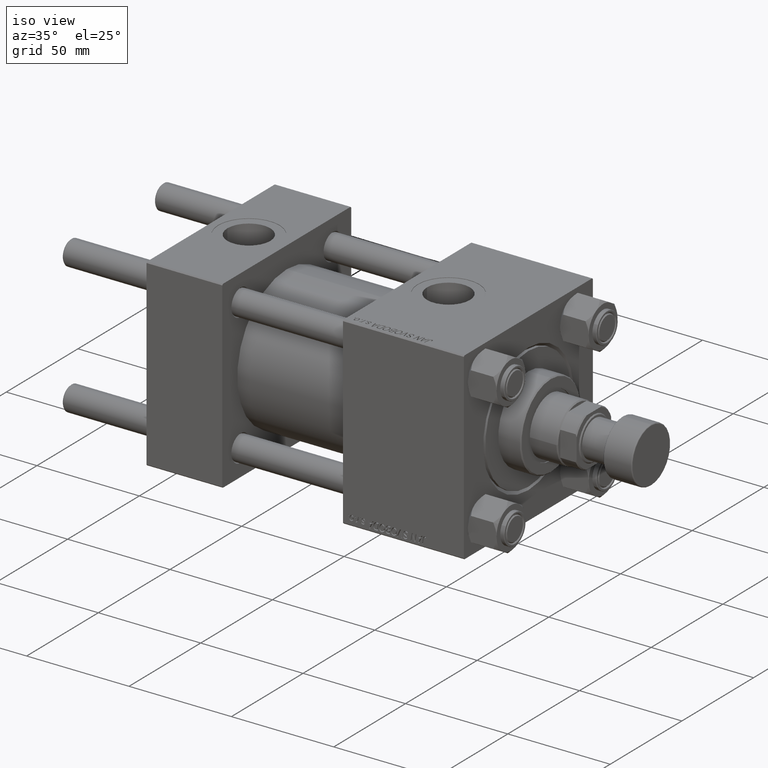
[diagram: clean part render]
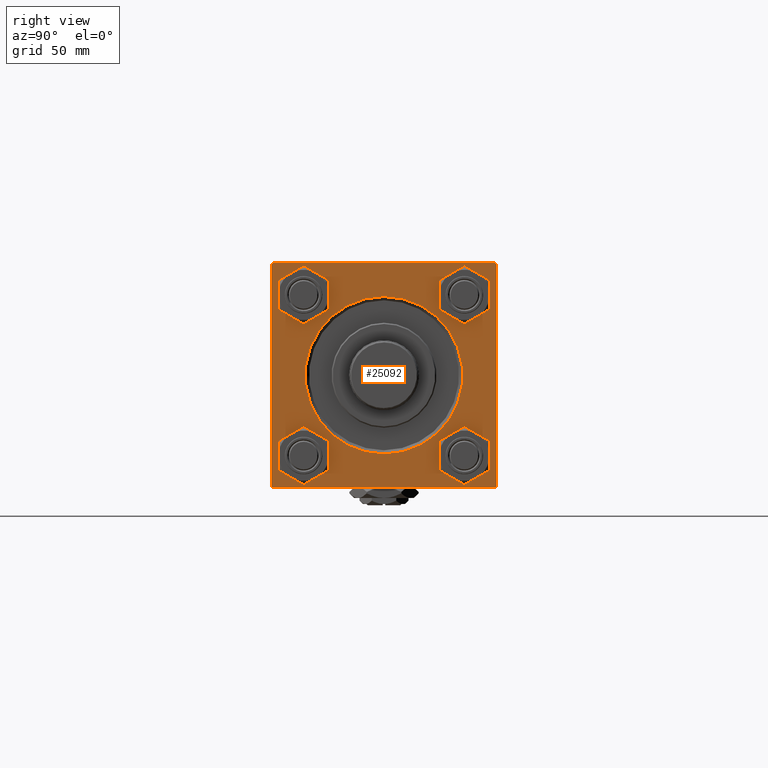
[diagram: tour spotlight — one face highlighted and labeled with its STEP entity id]
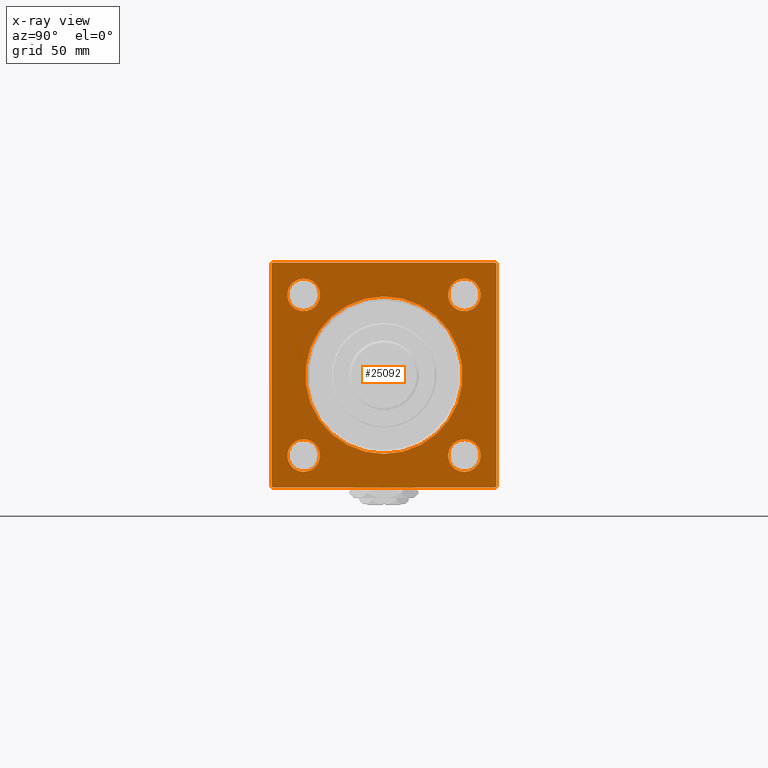
[diagram: x-ray of the same camera — body ghosted, this tour face saturated]
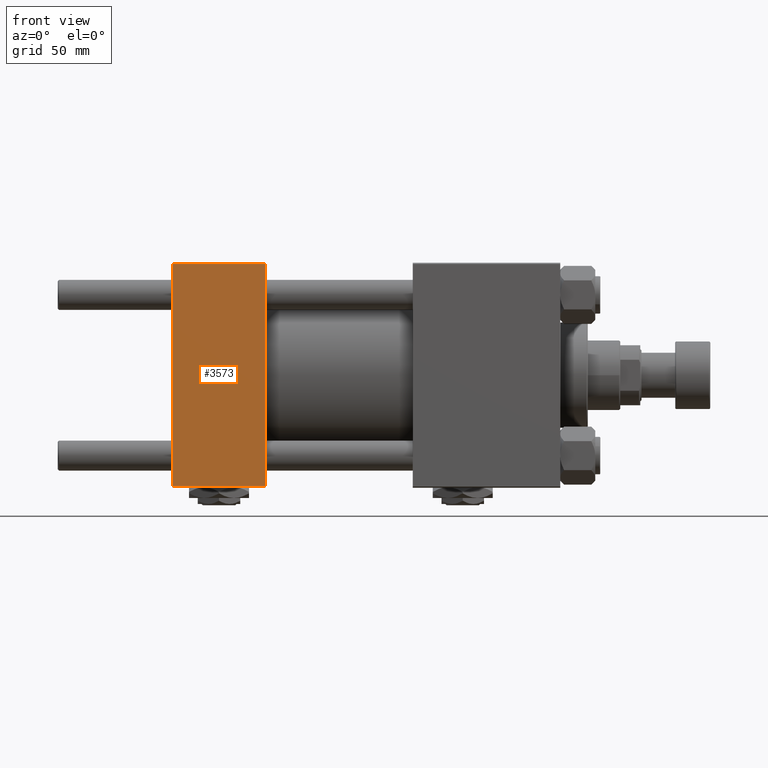
[diagram: tour spotlight — one face highlighted and labeled with its STEP entity id]
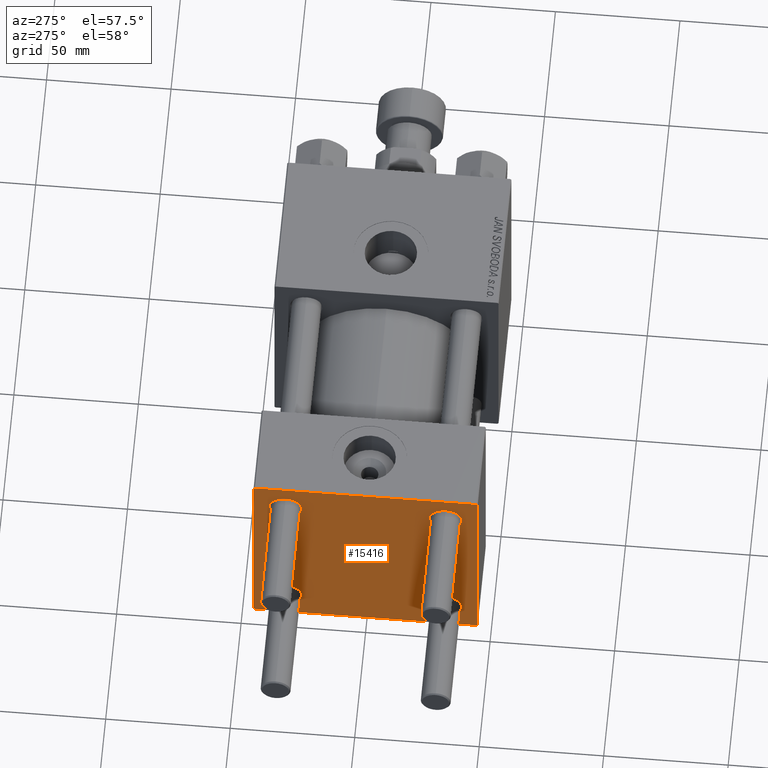
[diagram: tour spotlight — one face highlighted and labeled with its STEP entity id]
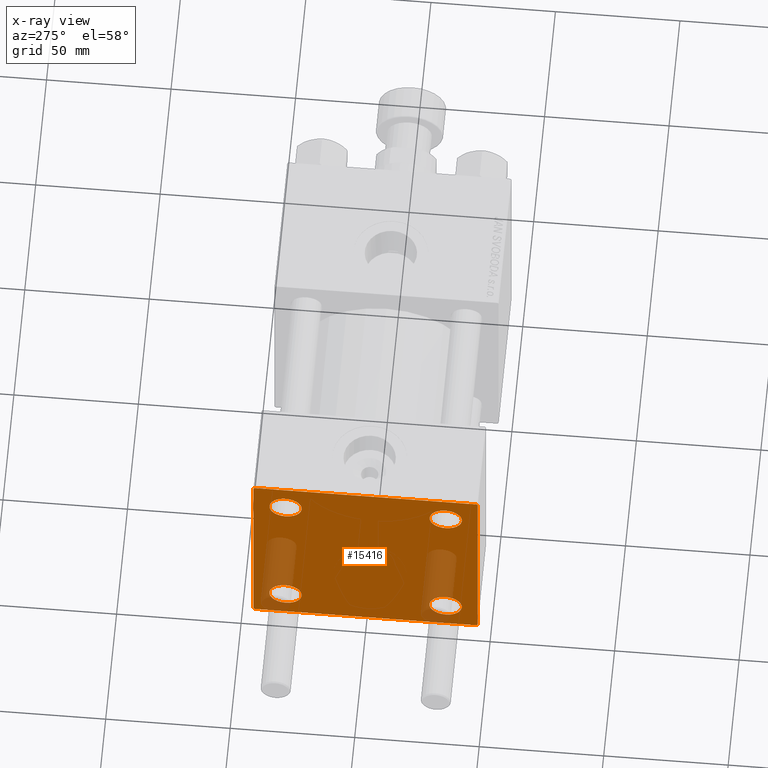
[diagram: x-ray of the same camera — body ghosted, this tour face saturated]
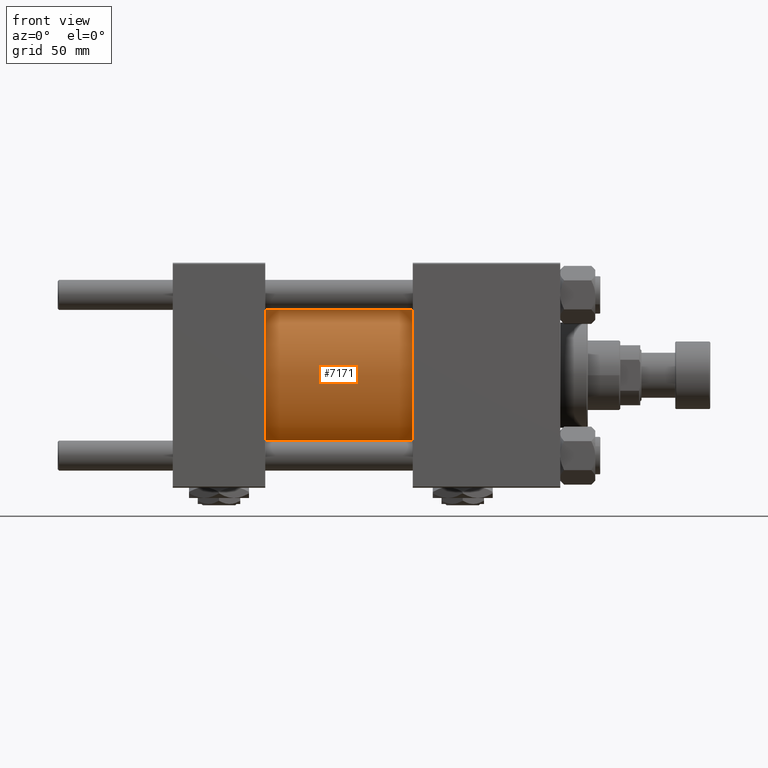
[diagram: tour spotlight — one face highlighted and labeled with its STEP entity id]
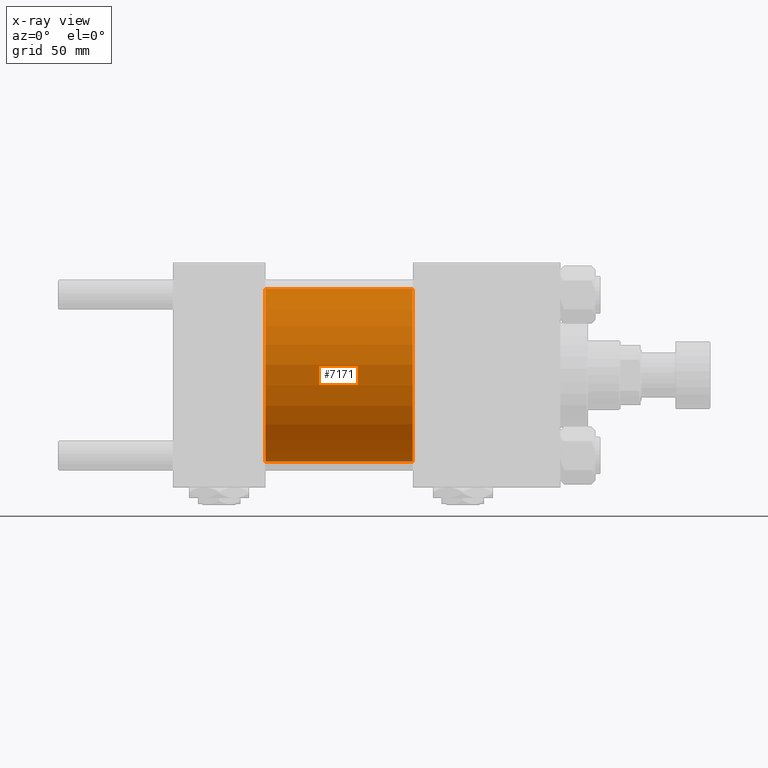
[diagram: x-ray of the same camera — body ghosted, this tour face saturated]
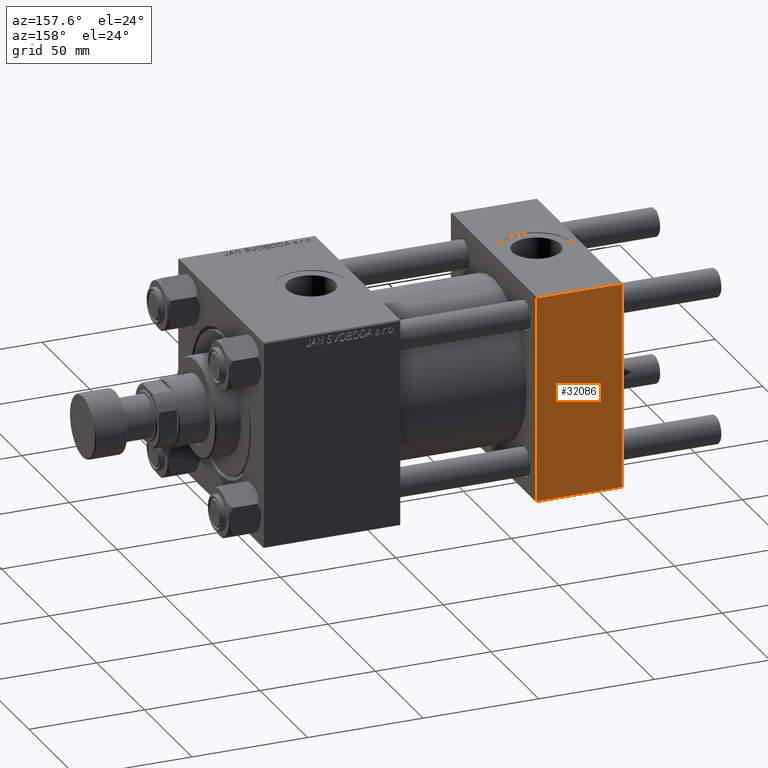
[diagram: tour spotlight — one face highlighted and labeled with its STEP entity id]
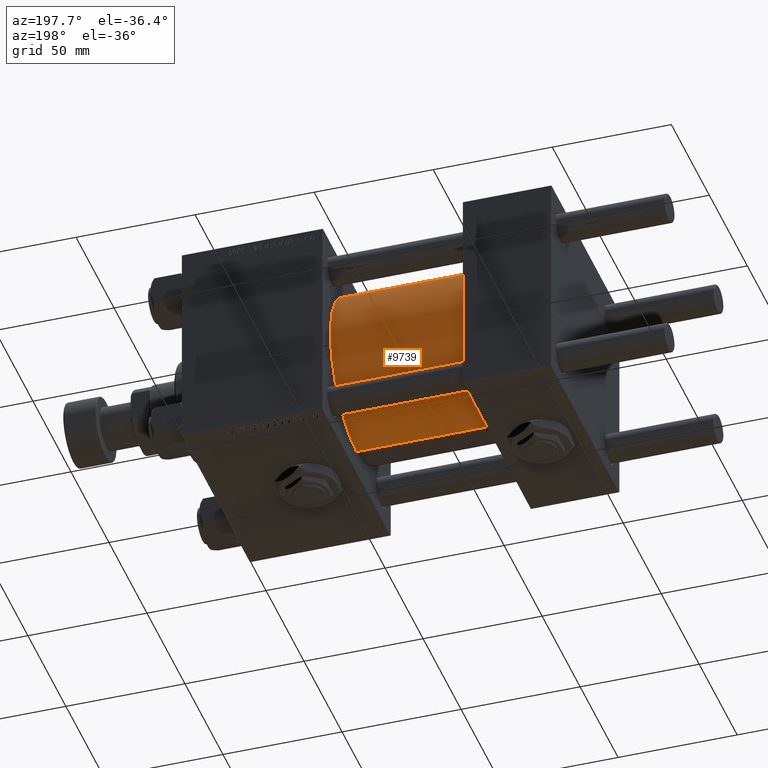
[diagram: tour spotlight — one face highlighted and labeled with its STEP entity id]
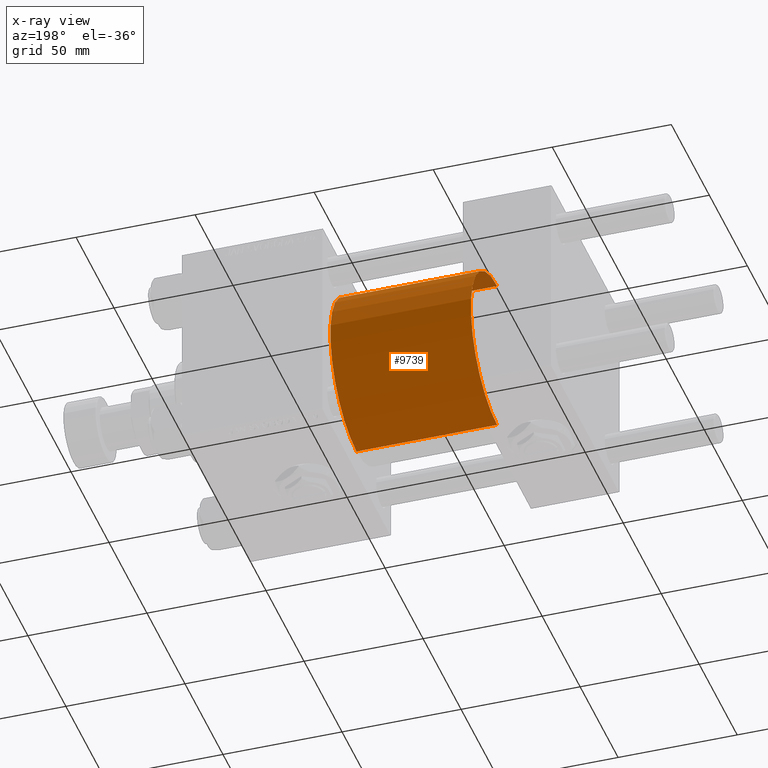
[diagram: x-ray of the same camera — body ghosted, this tour face saturated]
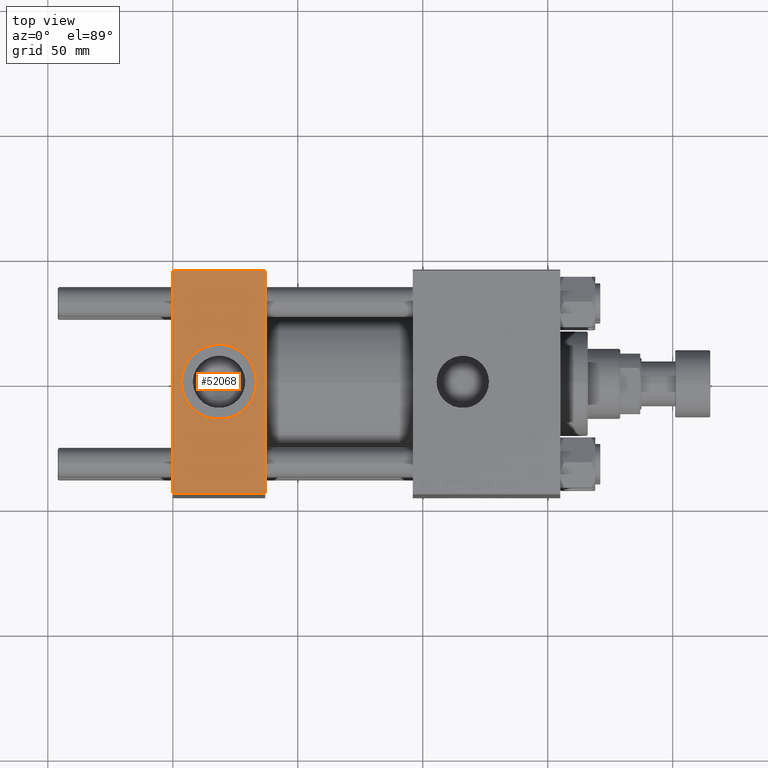
[diagram: tour spotlight — one face highlighted and labeled with its STEP entity id]
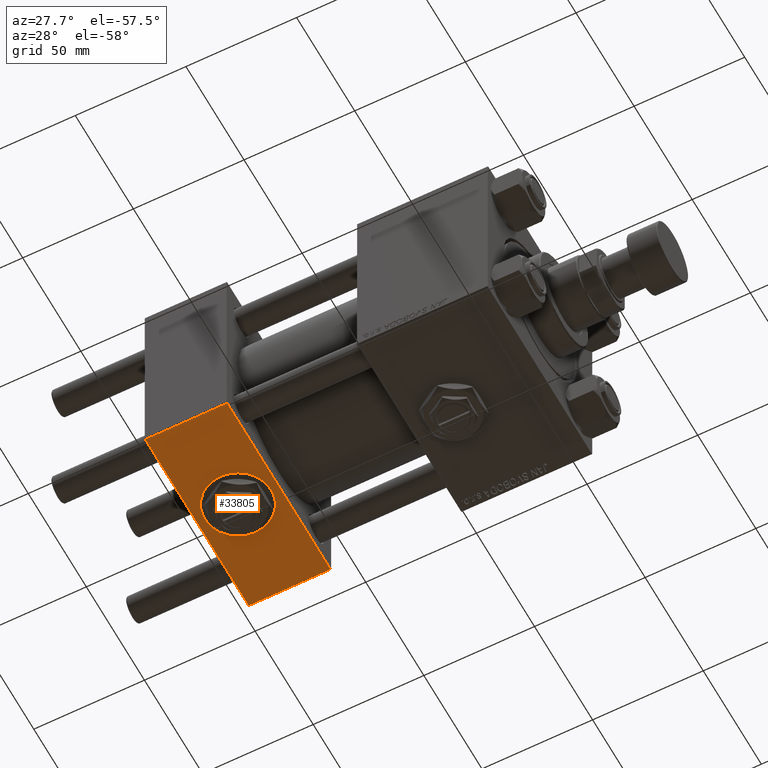
[diagram: tour spotlight — one face highlighted and labeled with its STEP entity id]
A machine part: a face-by-face anatomy tour. The part has 1247 B-rep faces; the first image is the clean iso view, then the 8 largest visible faces are spotlighted one at a time (largest first), each with its STEP entity span.

Face 1 — right view, entity #25092. An x-ray twin of the same camera follows (body ghosted, this face saturated) — the face is partly hidden behind the body. In plain terms, the highlighted planar face has unit normal (-1, 0, 0).
Definition (entity closure, byte-faithful):
#555 = FACE_BOUND ( 'NONE', #39057, .T. ) ;
#599 = EDGE_CURVE ( 'NONE', #22335, #49947, #43040, .T. ) ;
#639 = DIRECTION ( 'NONE',  ( -1.000000000000000000, -0.000000000000000000, -0.000000000000000000 ) ) ;
#741 = LINE ( 'NONE', #8438, #45087 ) ;
#987 = DIRECTION ( 'NONE',  ( -0.000000000000000000, -0.7071067811865474617, -0.7071067811865474617 ) ) ;
#1257 = AXIS2_PLACEMENT_3D ( 'NONE', #11202, #38971, #42944 ) ;
#1355 = CARTESIAN_POINT ( 'NONE',  ( 155.0000000000000000, 44.50000000000001421, -45.00000000000000000 ) ) ;
#1512 = CIRCLE ( 'NONE', #5750, 6.500000000000061284 ) ;
#1948 = EDGE_LOOP ( 'NONE', ( #47134, #51053 ) ) ;
#1974 = EDGE_CURVE ( 'NONE', #49947, #22335, #14407, .T. ) ;
#2020 = VECTOR ( 'NONE', #24056, 1000.000000000000000 ) ;
#2168 = EDGE_CURVE ( 'NONE', #42841, #19355, #44317, .T. ) ;
#2640 = VERTEX_POINT ( 'NONE', #14092 ) ;
#3976 = AXIS2_PLACEMENT_3D ( 'NONE', #19406, #15710, #6735 ) ;
#4446 = ORIENTED_EDGE ( 'NONE', *, *, #9075, .T. ) ;
#4631 = CARTESIAN_POINT ( 'NONE',  ( 155.0000000000000000, -44.49999999999992895, -45.00000000000000000 ) ) ;
#5129 = LINE ( 'NONE', #29217, #20821 ) ;
#5150 = ORIENTED_EDGE ( 'NONE', *, *, #49520, .T. ) ;
#5434 = VERTEX_POINT ( 'NONE', #16935 ) ;
#5750 = AXIS2_PLACEMENT_3D ( 'NONE', #35007, #22573, #30539 ) ;
#6133 = CARTESIAN_POINT ( 'NONE',  ( 155.0000000000000000, 32.14999999999999147, -32.15000000000000568 ) ) ;
#6617 = ORIENTED_EDGE ( 'NONE', *, *, #48189, .F. ) ;
#6735 = DIRECTION ( 'NONE',  ( 0.000000000000000000, 0.000000000000000000, 1.000000000000000000 ) ) ;
#7760 = VERTEX_POINT ( 'NONE', #13074 ) ;
#8438 = CARTESIAN_POINT ( 'NONE',  ( 155.0000000000000000, -45.00000000000000000, 44.49999999999995737 ) ) ;
#8459 = LINE ( 'NONE', #47851, #51135 ) ;
#8516 = CARTESIAN_POINT ( 'NONE',  ( 155.0000000000000000, 0.000000000000000000, 0.000000000000000000 ) ) ;
#9075 = EDGE_CURVE ( 'NONE', #36148, #49716, #40950, .T. ) ;
#11202 = CARTESIAN_POINT ( 'NONE',  ( 155.0000000000000000, 32.14999999999999147, -32.15000000000000568 ) ) ;
#11235 = EDGE_CURVE ( 'NONE', #51222, #29384, #741, .T. ) ;
#11660 = DIRECTION ( 'NONE',  ( -1.000000000000000000, -0.000000000000000000, -0.000000000000000000 ) ) ;
#11661 = LINE ( 'NONE', #28336, #41994 ) ;
#11685 = PLANE ( 'NONE',  #30322 ) ;
#11888 = DIRECTION ( 'NONE',  ( 0.000000000000000000, -0.7071067811865474617, 0.7071067811865474617 ) ) ;
#11969 = CARTESIAN_POINT ( 'NONE',  ( 155.0000000000000000, 0.000000000000000000, -31.50000000000000000 ) ) ;
#12864 = ORIENTED_EDGE ( 'NONE', *, *, #20616, .T. ) ;
#13074 = CARTESIAN_POINT ( 'NONE',  ( 155.0000000000000000, 32.14999999999999147, -38.65000000000006963 ) ) ;
#13551 = DIRECTION ( 'NONE',  ( -1.000000000000000000, -0.000000000000000000, -0.000000000000000000 ) ) ;
#13559 = DIRECTION ( 'NONE',  ( 0.000000000000000000, 0.000000000000000000, 1.000000000000000000 ) ) ;
#14092 = CARTESIAN_POINT ( 'NONE',  ( 155.0000000000000000, 45.00000000000001421, -44.49999999999997158 ) ) ;
#14117 = EDGE_CURVE ( 'NONE', #14429, #42754, #8459, .T. ) ;
#14118 = CIRCLE ( 'NONE', #29291, 31.50000000000000000 ) ;
#14407 = CIRCLE ( 'NONE', #16922, 6.500000000000061284 ) ;
#14429 = VERTEX_POINT ( 'NONE', #43180 ) ;
#14455 = DIRECTION ( 'NONE',  ( -1.000000000000000000, -0.000000000000000000, -0.000000000000000000 ) ) ;
#14732 = CARTESIAN_POINT ( 'NONE',  ( 155.0000000000000000, -45.00000000000000000, 44.49999999999995737 ) ) ;
#14865 = CIRCLE ( 'NONE', #46942, 6.500000000000061284 ) ;
#15041 = CARTESIAN_POINT ( 'NONE',  ( 155.0000000000000000, -44.49999999999994316, 44.99999999999998579 ) ) ;
#15120 = DIRECTION ( 'NONE',  ( 0.000000000000000000, 0.000000000000000000, 1.000000000000000000 ) ) ;
#15361 = EDGE_CURVE ( 'NONE', #29912, #43986, #14865, .T. ) ;
#15710 = DIRECTION ( 'NONE',  ( -1.000000000000000000, -0.000000000000000000, -0.000000000000000000 ) ) ;
#15926 = VECTOR ( 'NONE', #24484, 1000.000000000000000 ) ;
#16063 = VECTOR ( 'NONE', #22985, 1000.000000000000000 ) ;
#16296 = ORIENTED_EDGE ( 'NONE', *, *, #14117, .T. ) ;
#16461 = CIRCLE ( 'NONE', #36726, 6.500000000000061284 ) ;
#16922 = AXIS2_PLACEMENT_3D ( 'NONE', #40487, #11660, #15120 ) ;
#16935 = CARTESIAN_POINT ( 'NONE',  ( 155.0000000000000000, 32.14999999999999147, -25.64999999999994529 ) ) ;
#17383 = EDGE_CURVE ( 'NONE', #49716, #36148, #14118, .T. ) ;
#17533 = VECTOR ( 'NONE', #46980, 1000.000000000000000 ) ;
#17740 = DIRECTION ( 'NONE',  ( -1.000000000000000000, -0.000000000000000000, -0.000000000000000000 ) ) ;
#18555 = ORIENTED_EDGE ( 'NONE', *, *, #1974, .T. ) ;
#19169 = EDGE_CURVE ( 'NONE', #43986, #29912, #26805, .T. ) ;
#19355 = VERTEX_POINT ( 'NONE', #49261 ) ;
#19406 = CARTESIAN_POINT ( 'NONE',  ( 155.0000000000000000, 32.14999999999999147, 32.15000000000000568 ) ) ;
#19461 = LINE ( 'NONE', #28186, #15926 ) ;
#19703 = CARTESIAN_POINT ( 'NONE',  ( 155.0000000000000000, 0.000000000000000000, 0.000000000000000000 ) ) ;
#19905 = EDGE_LOOP ( 'NONE', ( #23350, #21877, #39582, #45144, #6617, #16296, #22366, #48220 ) ) ;
#20036 = CARTESIAN_POINT ( 'NONE',  ( 155.0000000000000000, -32.14999999999997726, 38.65000000000007674 ) ) ;
#20190 = CARTESIAN_POINT ( 'NONE',  ( 155.0000000000000000, -32.14999999999997726, -38.65000000000007674 ) ) ;
#20616 = EDGE_CURVE ( 'NONE', #27994, #47726, #49661, .T. ) ;
#20680 = CIRCLE ( 'NONE', #1257, 6.500000000000061284 ) ;
#20821 = VECTOR ( 'NONE', #45064, 1000.000000000000000 ) ;
#21877 = ORIENTED_EDGE ( 'NONE', *, *, #2168, .T. ) ;
#21910 = CARTESIAN_POINT ( 'NONE',  ( 155.0000000000000000, -32.14999999999997726, 25.64999999999994884 ) ) ;
#22335 = VERTEX_POINT ( 'NONE', #21910 ) ;
#22366 = ORIENTED_EDGE ( 'NONE', *, *, #42890, .T. ) ;
#22573 = DIRECTION ( 'NONE',  ( -1.000000000000000000, -0.000000000000000000, -0.000000000000000000 ) ) ;
#22633 = DIRECTION ( 'NONE',  ( 0.000000000000000000, 0.000000000000000000, 1.000000000000000000 ) ) ;
#22985 = DIRECTION ( 'NONE',  ( 0.000000000000000000, 0.7071067811865524577, -0.7071067811865426878 ) ) ;
#23350 = ORIENTED_EDGE ( 'NONE', *, *, #37138, .T. ) ;
#23501 = AXIS2_PLACEMENT_3D ( 'NONE', #38092, #17740, #50262 ) ;
#23657 = DIRECTION ( 'NONE',  ( 0.000000000000000000, 0.000000000000000000, 1.000000000000000000 ) ) ;
#24056 = DIRECTION ( 'NONE',  ( 0.000000000000000000, 7.709882115452478166E-17, -1.000000000000000000 ) ) ;
#24109 = FACE_BOUND ( 'NONE', #34905, .T. ) ;
#24198 = DIRECTION ( 'NONE',  ( 0.000000000000000000, 0.000000000000000000, 1.000000000000000000 ) ) ;
#24383 = FACE_OUTER_BOUND ( 'NONE', #19905, .T. ) ;
#24484 = DIRECTION ( 'NONE',  ( 0.000000000000000000, -1.000000000000000000, 0.000000000000000000 ) ) ;
#25092 = ADVANCED_FACE ( 'NONE', ( #555, #44985, #52142, #40509, #24109, #24383 ), #11685, .F. ) ;
#26805 = CIRCLE ( 'NONE', #3976, 6.500000000000061284 ) ;
#27052 = ORIENTED_EDGE ( 'NONE', *, *, #38511, .T. ) ;
#27446 = AXIS2_PLACEMENT_3D ( 'NONE', #38648, #13551, #29685 ) ;
#27805 = DIRECTION ( 'NONE',  ( -0.000000000000000000, 0.7071067811865474617, 0.7071067811865474617 ) ) ;
#27994 = VERTEX_POINT ( 'NONE', #37400 ) ;
#28186 = CARTESIAN_POINT ( 'NONE',  ( 155.0000000000000000, 45.00000000000001421, -45.00000000000000000 ) ) ;
#28336 = CARTESIAN_POINT ( 'NONE',  ( 155.0000000000000000, 45.00000000000001421, -44.50000000000000000 ) ) ;
#28356 = DIRECTION ( 'NONE',  ( -1.000000000000000000, 0.000000000000000000, -0.000000000000000000 ) ) ;
#28561 = CARTESIAN_POINT ( 'NONE',  ( 155.0000000000000000, -45.00000000000000000, 44.99999999999998579 ) ) ;
#29217 = CARTESIAN_POINT ( 'NONE',  ( 155.0000000000000000, 45.00000000000001421, 45.00000000000000000 ) ) ;
#29291 = AXIS2_PLACEMENT_3D ( 'NONE', #19703, #639, #24198 ) ;
#29384 = VERTEX_POINT ( 'NONE', #14732 ) ;
#29685 = DIRECTION ( 'NONE',  ( 0.000000000000000000, 0.000000000000000000, 1.000000000000000000 ) ) ;
#29912 = VERTEX_POINT ( 'NONE', #40570 ) ;
#30322 = AXIS2_PLACEMENT_3D ( 'NONE', #8516, #28356, #36800 ) ;
#30539 = DIRECTION ( 'NONE',  ( 0.000000000000000000, 0.000000000000000000, 1.000000000000000000 ) ) ;
#34905 = EDGE_LOOP ( 'NONE', ( #40388, #4446 ) ) ;
#35007 = CARTESIAN_POINT ( 'NONE',  ( 155.0000000000000000, -32.14999999999997726, -32.15000000000001279 ) ) ;
#35832 = CARTESIAN_POINT ( 'NONE',  ( 155.0000000000000000, -44.99999999999999289, -44.49999999999991473 ) ) ;
#36148 = VERTEX_POINT ( 'NONE', #40762 ) ;
#36265 = CARTESIAN_POINT ( 'NONE',  ( 155.0000000000000000, 32.14999999999999147, 25.64999999999994529 ) ) ;
#36726 = AXIS2_PLACEMENT_3D ( 'NONE', #6133, #41838, #13559 ) ;
#36800 = DIRECTION ( 'NONE',  ( -0.000000000000000000, 0.000000000000000000, 1.000000000000000000 ) ) ;
#37138 = EDGE_CURVE ( 'NONE', #29384, #42841, #44687, .T. ) ;
#37400 = CARTESIAN_POINT ( 'NONE',  ( 155.0000000000000000, -32.14999999999997726, -25.64999999999994884 ) ) ;
#38092 = CARTESIAN_POINT ( 'NONE',  ( 155.0000000000000000, -32.14999999999997726, -32.15000000000001279 ) ) ;
#38511 = EDGE_CURVE ( 'NONE', #7760, #5434, #20680, .T. ) ;
#38648 = CARTESIAN_POINT ( 'NONE',  ( 155.0000000000000000, 0.000000000000000000, 0.000000000000000000 ) ) ;
#38762 = EDGE_CURVE ( 'NONE', #5434, #7760, #16461, .T. ) ;
#38971 = DIRECTION ( 'NONE',  ( -1.000000000000000000, -0.000000000000000000, -0.000000000000000000 ) ) ;
#39057 = EDGE_LOOP ( 'NONE', ( #5150, #12864 ) ) ;
#39582 = ORIENTED_EDGE ( 'NONE', *, *, #47514, .F. ) ;
#40038 = DIRECTION ( 'NONE',  ( -1.000000000000000000, -0.000000000000000000, -0.000000000000000000 ) ) ;
#40388 = ORIENTED_EDGE ( 'NONE', *, *, #17383, .T. ) ;
#40464 = ORIENTED_EDGE ( 'NONE', *, *, #38762, .T. ) ;
#40487 = CARTESIAN_POINT ( 'NONE',  ( 155.0000000000000000, -32.14999999999997726, 32.15000000000001279 ) ) ;
#40509 = FACE_BOUND ( 'NONE', #41049, .T. ) ;
#40570 = CARTESIAN_POINT ( 'NONE',  ( 155.0000000000000000, 32.14999999999999147, 38.65000000000007674 ) ) ;
#40762 = CARTESIAN_POINT ( 'NONE',  ( 155.0000000000000000, 3.857637417314162689E-15, 31.50000000000000000 ) ) ;
#40950 = CIRCLE ( 'NONE', #27446, 31.50000000000000000 ) ;
#41049 = EDGE_LOOP ( 'NONE', ( #45290, #18555 ) ) ;
#41838 = DIRECTION ( 'NONE',  ( -1.000000000000000000, -0.000000000000000000, -0.000000000000000000 ) ) ;
#41994 = VECTOR ( 'NONE', #27805, 1000.000000000000114 ) ;
#42754 = VERTEX_POINT ( 'NONE', #46690 ) ;
#42841 = VERTEX_POINT ( 'NONE', #35832 ) ;
#42890 = EDGE_CURVE ( 'NONE', #42754, #51222, #5129, .T. ) ;
#42944 = DIRECTION ( 'NONE',  ( 0.000000000000000000, 0.000000000000000000, 1.000000000000000000 ) ) ;
#43040 = CIRCLE ( 'NONE', #48982, 6.500000000000061284 ) ;
#43180 = CARTESIAN_POINT ( 'NONE',  ( 155.0000000000000000, 45.00000000000001421, 44.49999999999997158 ) ) ;
#43986 = VERTEX_POINT ( 'NONE', #36265 ) ;
#44317 = LINE ( 'NONE', #4631, #16063 ) ;
#44687 = LINE ( 'NONE', #28561, #2020 ) ;
#44985 = FACE_BOUND ( 'NONE', #47909, .T. ) ;
#45064 = DIRECTION ( 'NONE',  ( 0.000000000000000000, -1.000000000000000000, -1.541976423090495140E-16 ) ) ;
#45087 = VECTOR ( 'NONE', #987, 1000.000000000000114 ) ;
#45144 = ORIENTED_EDGE ( 'NONE', *, *, #48052, .T. ) ;
#45290 = ORIENTED_EDGE ( 'NONE', *, *, #599, .T. ) ;
#46690 = CARTESIAN_POINT ( 'NONE',  ( 155.0000000000000000, 44.49999999999998579, 45.00000000000000000 ) ) ;
#46942 = AXIS2_PLACEMENT_3D ( 'NONE', #51451, #14455, #22633 ) ;
#46980 = DIRECTION ( 'NONE',  ( 0.000000000000000000, 0.000000000000000000, -1.000000000000000000 ) ) ;
#47134 = ORIENTED_EDGE ( 'NONE', *, *, #19169, .T. ) ;
#47495 = LINE ( 'NONE', #51215, #17533 ) ;
#47514 = EDGE_CURVE ( 'NONE', #49795, #19355, #19461, .T. ) ;
#47726 = VERTEX_POINT ( 'NONE', #20190 ) ;
#47851 = CARTESIAN_POINT ( 'NONE',  ( 155.0000000000000000, 44.49999999999998579, 45.00000000000000000 ) ) ;
#47909 = EDGE_LOOP ( 'NONE', ( #27052, #40464 ) ) ;
#48052 = EDGE_CURVE ( 'NONE', #49795, #2640, #11661, .T. ) ;
#48189 = EDGE_CURVE ( 'NONE', #14429, #2640, #47495, .T. ) ;
#48220 = ORIENTED_EDGE ( 'NONE', *, *, #11235, .T. ) ;
#48982 = AXIS2_PLACEMENT_3D ( 'NONE', #51688, #40038, #23657 ) ;
#49261 = CARTESIAN_POINT ( 'NONE',  ( 155.0000000000000000, -44.49999999999990052, -45.00000000000000000 ) ) ;
#49520 = EDGE_CURVE ( 'NONE', #47726, #27994, #1512, .T. ) ;
#49661 = CIRCLE ( 'NONE', #23501, 6.500000000000061284 ) ;
#49716 = VERTEX_POINT ( 'NONE', #11969 ) ;
#49795 = VERTEX_POINT ( 'NONE', #1355 ) ;
#49947 = VERTEX_POINT ( 'NONE', #20036 ) ;
#50262 = DIRECTION ( 'NONE',  ( 0.000000000000000000, 0.000000000000000000, 1.000000000000000000 ) ) ;
#51053 = ORIENTED_EDGE ( 'NONE', *, *, #15361, .T. ) ;
#51135 = VECTOR ( 'NONE', #11888, 1000.000000000000114 ) ;
#51215 = CARTESIAN_POINT ( 'NONE',  ( 155.0000000000000000, 45.00000000000001421, 45.00000000000000000 ) ) ;
#51222 = VERTEX_POINT ( 'NONE', #15041 ) ;
#51451 = CARTESIAN_POINT ( 'NONE',  ( 155.0000000000000000, 32.14999999999999147, 32.15000000000000568 ) ) ;
#51688 = CARTESIAN_POINT ( 'NONE',  ( 155.0000000000000000, -32.14999999999997726, 32.15000000000001279 ) ) ;
#52142 = FACE_BOUND ( 'NONE', #1948, .T. ) ;

Face 2 — front view, entity #3573. In plain terms, the highlighted planar face has unit normal (0, 1, 0).
Definition (entity closure, byte-faithful):
#534 = VERTEX_POINT ( 'NONE', #1732 ) ;
#1100 = LINE ( 'NONE', #33661, #10972 ) ;
#1732 = CARTESIAN_POINT ( 'NONE',  ( 0.000000000000000000, -45.00000000000000711, 44.49999999999997158 ) ) ;
#1949 = VECTOR ( 'NONE', #16927, 1000.000000000000000 ) ;
#2072 = CARTESIAN_POINT ( 'NONE',  ( 37.00000000000000000, -45.00000000000000000, -44.49999999999995737 ) ) ;
#3558 = AXIS2_PLACEMENT_3D ( 'NONE', #51225, #3596, #48301 ) ;
#3573 = ADVANCED_FACE ( 'NONE', ( #27429 ), #32188, .F. ) ;
#3596 = DIRECTION ( 'NONE',  ( -0.000000000000000000, 1.000000000000000000, 7.709882115452478166E-17 ) ) ;
#3937 = VECTOR ( 'NONE', #20054, 1000.000000000000000 ) ;
#5535 = LINE ( 'NONE', #8738, #1949 ) ;
#6530 = ORIENTED_EDGE ( 'NONE', *, *, #34496, .T. ) ;
#8738 = CARTESIAN_POINT ( 'NONE',  ( 0.000000000000000000, -45.00000000000000711, 45.00000000000000000 ) ) ;
#10972 = VECTOR ( 'NONE', #50041, 1000.000000000000000 ) ;
#16927 = DIRECTION ( 'NONE',  ( 0.000000000000000000, 7.709882115452476934E-17, -1.000000000000000000 ) ) ;
#20054 = DIRECTION ( 'NONE',  ( -1.000000000000000000, 0.000000000000000000, 0.000000000000000000 ) ) ;
#20105 = LINE ( 'NONE', #32803, #23096 ) ;
#20337 = VERTEX_POINT ( 'NONE', #51359 ) ;
#22226 = CARTESIAN_POINT ( 'NONE',  ( 0.000000000000000000, -45.00000000000000000, -44.49999999999995737 ) ) ;
#23096 = VECTOR ( 'NONE', #32284, 1000.000000000000000 ) ;
#24286 = CARTESIAN_POINT ( 'NONE',  ( 37.00000000000000000, -45.00000000000000711, 44.49999999999997158 ) ) ;
#27429 = FACE_OUTER_BOUND ( 'NONE', #43034, .T. ) ;
#29050 = EDGE_CURVE ( 'NONE', #20337, #51689, #1100, .T. ) ;
#30444 = VERTEX_POINT ( 'NONE', #22226 ) ;
#32188 = PLANE ( 'NONE',  #3558 ) ;
#32284 = DIRECTION ( 'NONE',  ( 1.000000000000000000, 0.000000000000000000, 0.000000000000000000 ) ) ;
#32349 = EDGE_CURVE ( 'NONE', #30444, #51689, #20105, .T. ) ;
#32803 = CARTESIAN_POINT ( 'NONE',  ( 37.00000000000000000, -45.00000000000000000, -44.49999999999998579 ) ) ;
#33661 = CARTESIAN_POINT ( 'NONE',  ( 37.00000000000000000, -45.00000000000000711, 45.00000000000000000 ) ) ;
#34496 = EDGE_CURVE ( 'NONE', #534, #30444, #5535, .T. ) ;
#38964 = ORIENTED_EDGE ( 'NONE', *, *, #43470, .T. ) ;
#42403 = ORIENTED_EDGE ( 'NONE', *, *, #29050, .F. ) ;
#43034 = EDGE_LOOP ( 'NONE', ( #6530, #49067, #42403, #38964 ) ) ;
#43470 = EDGE_CURVE ( 'NONE', #20337, #534, #48882, .T. ) ;
#48301 = DIRECTION ( 'NONE',  ( 0.000000000000000000, -7.709882115452478166E-17, 1.000000000000000000 ) ) ;
#48882 = LINE ( 'NONE', #24286, #3937 ) ;
#49067 = ORIENTED_EDGE ( 'NONE', *, *, #32349, .T. ) ;
#50041 = DIRECTION ( 'NONE',  ( 0.000000000000000000, 7.709882115452476934E-17, -1.000000000000000000 ) ) ;
#51225 = CARTESIAN_POINT ( 'NONE',  ( 37.00000000000000000, -45.00000000000000711, 45.00000000000000000 ) ) ;
#51359 = CARTESIAN_POINT ( 'NONE',  ( 37.00000000000000000, -45.00000000000000711, 44.49999999999997158 ) ) ;
#51689 = VERTEX_POINT ( 'NONE', #2072 ) ;

Face 3 — auxiliary view, entity #15416. An x-ray twin of the same camera follows (body ghosted, this face saturated) — the face is partly hidden behind the body. In plain terms, the highlighted planar face has unit normal (-1, 0, 0).
Definition (entity closure, byte-faithful):
#534 = VERTEX_POINT ( 'NONE', #1732 ) ;
#789 = EDGE_CURVE ( 'NONE', #35271, #37077, #10964, .T. ) ;
#1107 = AXIS2_PLACEMENT_3D ( 'NONE', #19165, #19682, #46233 ) ;
#1632 = VECTOR ( 'NONE', #27980, 1000.000000000000114 ) ;
#1732 = CARTESIAN_POINT ( 'NONE',  ( 0.000000000000000000, -45.00000000000000711, 44.49999999999997158 ) ) ;
#1949 = VECTOR ( 'NONE', #16927, 1000.000000000000000 ) ;
#2235 = ORIENTED_EDGE ( 'NONE', *, *, #23754, .T. ) ;
#2554 = LINE ( 'NONE', #27671, #14079 ) ;
#2705 = CIRCLE ( 'NONE', #45780, 6.499999999999977796 ) ;
#2934 = DIRECTION ( 'NONE',  ( 0.000000000000000000, 0.000000000000000000, 1.000000000000000000 ) ) ;
#3009 = EDGE_LOOP ( 'NONE', ( #47611, #35185 ) ) ;
#3174 = VECTOR ( 'NONE', #21132, 1000.000000000000114 ) ;
#3401 = EDGE_CURVE ( 'NONE', #37077, #35271, #2705, .T. ) ;
#4094 = FACE_BOUND ( 'NONE', #3009, .T. ) ;
#4329 = DIRECTION ( 'NONE',  ( 0.000000000000000000, 0.000000000000000000, 1.000000000000000000 ) ) ;
#4347 = FACE_OUTER_BOUND ( 'NONE', #50690, .T. ) ;
#4621 = CIRCLE ( 'NONE', #40947, 6.499999999999977796 ) ;
#5333 = AXIS2_PLACEMENT_3D ( 'NONE', #14745, #46214, #50715 ) ;
#5535 = LINE ( 'NONE', #8738, #1949 ) ;
#5624 = EDGE_CURVE ( 'NONE', #21628, #39955, #28961, .T. ) ;
#5667 = ORIENTED_EDGE ( 'NONE', *, *, #27484, .T. ) ;
#5699 = CARTESIAN_POINT ( 'NONE',  ( 0.000000000000000000, 32.14999999999999147, 25.65000000000002700 ) ) ;
#6147 = AXIS2_PLACEMENT_3D ( 'NONE', #26444, #38073, #49720 ) ;
#6196 = ORIENTED_EDGE ( 'NONE', *, *, #5624, .T. ) ;
#7931 = CARTESIAN_POINT ( 'NONE',  ( 0.000000000000000000, 44.74999999999999289, 44.74999999999999289 ) ) ;
#8633 = CARTESIAN_POINT ( 'NONE',  ( 0.000000000000000000, -44.74999999999998579, -44.74999999999998579 ) ) ;
#8738 = CARTESIAN_POINT ( 'NONE',  ( 0.000000000000000000, -45.00000000000000711, 45.00000000000000000 ) ) ;
#9660 = CARTESIAN_POINT ( 'NONE',  ( 0.000000000000000000, 44.49999999999998579, 45.00000000000001421 ) ) ;
#10491 = CARTESIAN_POINT ( 'NONE',  ( 0.000000000000000000, 44.49999999999998579, -44.99999999999998579 ) ) ;
#10913 = ORIENTED_EDGE ( 'NONE', *, *, #11472, .T. ) ;
#10964 = CIRCLE ( 'NONE', #52333, 6.499999999999977796 ) ;
#11472 = EDGE_CURVE ( 'NONE', #24884, #30444, #41141, .T. ) ;
#11770 = DIRECTION ( 'NONE',  ( -1.000000000000000000, 0.000000000000000000, -0.000000000000000000 ) ) ;
#12336 = DIRECTION ( 'NONE',  ( 0.000000000000000000, -0.7071067811865474617, 0.7071067811865474617 ) ) ;
#12569 = LINE ( 'NONE', #21526, #40379 ) ;
#12601 = ORIENTED_EDGE ( 'NONE', *, *, #34496, .F. ) ;
#12673 = VECTOR ( 'NONE', #43847, 1000.000000000000000 ) ;
#12854 = VERTEX_POINT ( 'NONE', #43422 ) ;
#14079 = VECTOR ( 'NONE', #18686, 1000.000000000000000 ) ;
#14230 = DIRECTION ( 'NONE',  ( 0.000000000000000000, 0.000000000000000000, 1.000000000000000000 ) ) ;
#14304 = VERTEX_POINT ( 'NONE', #42407 ) ;
#14577 = ORIENTED_EDGE ( 'NONE', *, *, #43702, .T. ) ;
#14744 = CARTESIAN_POINT ( 'NONE',  ( 0.000000000000000000, -32.14999999999997726, -32.15000000000001279 ) ) ;
#14745 = CARTESIAN_POINT ( 'NONE',  ( 0.000000000000000000, 32.14999999999999147, -32.15000000000000568 ) ) ;
#15261 = ORIENTED_EDGE ( 'NONE', *, *, #3401, .T. ) ;
#15319 = ORIENTED_EDGE ( 'NONE', *, *, #23240, .T. ) ;
#15416 = ADVANCED_FACE ( 'NONE', ( #27647, #35581, #24713, #4094, #4347 ), #20488, .T. ) ;
#15425 = CARTESIAN_POINT ( 'NONE',  ( 0.000000000000000000, 32.14999999999999147, 32.15000000000000568 ) ) ;
#16719 = CIRCLE ( 'NONE', #29409, 6.500000000000019540 ) ;
#16893 = VERTEX_POINT ( 'NONE', #48395 ) ;
#16927 = DIRECTION ( 'NONE',  ( 0.000000000000000000, 7.709882115452476934E-17, -1.000000000000000000 ) ) ;
#17392 = CARTESIAN_POINT ( 'NONE',  ( 0.000000000000000000, -32.14999999999997726, 32.15000000000001279 ) ) ;
#18686 = DIRECTION ( 'NONE',  ( 0.000000000000000000, -1.000000000000000000, -1.541976423090495633E-16 ) ) ;
#19056 = VERTEX_POINT ( 'NONE', #9660 ) ;
#19165 = CARTESIAN_POINT ( 'NONE',  ( 0.000000000000000000, -32.14999999999997726, 32.15000000000001279 ) ) ;
#19489 = EDGE_LOOP ( 'NONE', ( #42699, #6196 ) ) ;
#19521 = LINE ( 'NONE', #19781, #12673 ) ;
#19601 = EDGE_CURVE ( 'NONE', #38789, #16893, #16719, .T. ) ;
#19682 = DIRECTION ( 'NONE',  ( 1.000000000000000000, -0.000000000000000000, 0.000000000000000000 ) ) ;
#19781 = CARTESIAN_POINT ( 'NONE',  ( 0.000000000000000000, 44.99999999999998579, 45.00000000000001421 ) ) ;
#20235 = CARTESIAN_POINT ( 'NONE',  ( 0.000000000000000000, 0.000000000000000000, 0.000000000000000000 ) ) ;
#20488 = PLANE ( 'NONE',  #52002 ) ;
#21132 = DIRECTION ( 'NONE',  ( -0.000000000000000000, 0.7071067811865425767, 0.7071067811865524577 ) ) ;
#21526 = CARTESIAN_POINT ( 'NONE',  ( 0.000000000000000000, 44.99999999999998579, 45.00000000000001421 ) ) ;
#21614 = ORIENTED_EDGE ( 'NONE', *, *, #28384, .F. ) ;
#21628 = VERTEX_POINT ( 'NONE', #32531 ) ;
#22226 = CARTESIAN_POINT ( 'NONE',  ( 0.000000000000000000, -45.00000000000000000, -44.49999999999995737 ) ) ;
#22676 = CARTESIAN_POINT ( 'NONE',  ( 0.000000000000000000, -32.14999999999997726, -38.64999999999999147 ) ) ;
#23240 = EDGE_CURVE ( 'NONE', #534, #12854, #41235, .T. ) ;
#23754 = EDGE_CURVE ( 'NONE', #39009, #25476, #12569, .T. ) ;
#23795 = DIRECTION ( 'NONE',  ( 0.000000000000000000, 0.7071067811865474617, -0.7071067811865474617 ) ) ;
#24145 = DIRECTION ( 'NONE',  ( 0.000000000000000000, 0.000000000000000000, 1.000000000000000000 ) ) ;
#24713 = FACE_BOUND ( 'NONE', #19489, .T. ) ;
#24797 = VECTOR ( 'NONE', #23795, 1000.000000000000114 ) ;
#24884 = VERTEX_POINT ( 'NONE', #49535 ) ;
#24980 = DIRECTION ( 'NONE',  ( 0.000000000000000000, 0.000000000000000000, -1.000000000000000000 ) ) ;
#25476 = VERTEX_POINT ( 'NONE', #44275 ) ;
#26444 = CARTESIAN_POINT ( 'NONE',  ( 0.000000000000000000, 32.14999999999999147, -32.15000000000000568 ) ) ;
#26768 = CARTESIAN_POINT ( 'NONE',  ( 0.000000000000000000, 32.14999999999999147, 32.15000000000000568 ) ) ;
#27484 = EDGE_CURVE ( 'NONE', #25476, #50184, #52035, .T. ) ;
#27647 = FACE_BOUND ( 'NONE', #43126, .T. ) ;
#27671 = CARTESIAN_POINT ( 'NONE',  ( 0.000000000000000000, 44.99999999999998579, -44.99999999999998579 ) ) ;
#27980 = DIRECTION ( 'NONE',  ( -0.000000000000000000, -0.7071067811865474617, -0.7071067811865474617 ) ) ;
#28239 = VECTOR ( 'NONE', #12336, 1000.000000000000114 ) ;
#28384 = EDGE_CURVE ( 'NONE', #19056, #12854, #19521, .T. ) ;
#28961 = CIRCLE ( 'NONE', #6147, 6.499999999999977796 ) ;
#29161 = EDGE_CURVE ( 'NONE', #35592, #14304, #30433, .T. ) ;
#29308 = DIRECTION ( 'NONE',  ( 1.000000000000000000, -0.000000000000000000, 0.000000000000000000 ) ) ;
#29344 = CARTESIAN_POINT ( 'NONE',  ( -0.000000000000000000, -44.75000000000029843, 44.74999999999967315 ) ) ;
#29409 = AXIS2_PLACEMENT_3D ( 'NONE', #17392, #29308, #44461 ) ;
#30433 = CIRCLE ( 'NONE', #47273, 6.499999999999977796 ) ;
#30444 = VERTEX_POINT ( 'NONE', #22226 ) ;
#30670 = EDGE_CURVE ( 'NONE', #16893, #38789, #32400, .T. ) ;
#31582 = ORIENTED_EDGE ( 'NONE', *, *, #19601, .T. ) ;
#32246 = CARTESIAN_POINT ( 'NONE',  ( 0.000000000000000000, 32.14999999999999147, -25.65000000000002700 ) ) ;
#32273 = LINE ( 'NONE', #7931, #24797 ) ;
#32400 = CIRCLE ( 'NONE', #1107, 6.500000000000019540 ) ;
#32453 = EDGE_CURVE ( 'NONE', #19056, #39009, #32273, .T. ) ;
#32531 = CARTESIAN_POINT ( 'NONE',  ( 0.000000000000000000, 32.14999999999999147, -38.64999999999998437 ) ) ;
#34447 = CARTESIAN_POINT ( 'NONE',  ( 0.000000000000000000, -32.14999999999997726, 25.64999999999999147 ) ) ;
#34496 = EDGE_CURVE ( 'NONE', #534, #30444, #5535, .T. ) ;
#35185 = ORIENTED_EDGE ( 'NONE', *, *, #29161, .T. ) ;
#35271 = VERTEX_POINT ( 'NONE', #22676 ) ;
#35304 = EDGE_CURVE ( 'NONE', #39955, #21628, #37466, .T. ) ;
#35581 = FACE_BOUND ( 'NONE', #46476, .T. ) ;
#35592 = VERTEX_POINT ( 'NONE', #5699 ) ;
#36569 = DIRECTION ( 'NONE',  ( 1.000000000000000000, -0.000000000000000000, 0.000000000000000000 ) ) ;
#37077 = VERTEX_POINT ( 'NONE', #51574 ) ;
#37466 = CIRCLE ( 'NONE', #5333, 6.499999999999977796 ) ;
#38016 = DIRECTION ( 'NONE',  ( 1.000000000000000000, -0.000000000000000000, 0.000000000000000000 ) ) ;
#38073 = DIRECTION ( 'NONE',  ( 1.000000000000000000, -0.000000000000000000, 0.000000000000000000 ) ) ;
#38576 = EDGE_CURVE ( 'NONE', #14304, #35592, #4621, .T. ) ;
#38789 = VERTEX_POINT ( 'NONE', #34447 ) ;
#39009 = VERTEX_POINT ( 'NONE', #48411 ) ;
#39312 = ORIENTED_EDGE ( 'NONE', *, *, #32453, .T. ) ;
#39955 = VERTEX_POINT ( 'NONE', #32246 ) ;
#40327 = DIRECTION ( 'NONE',  ( -0.000000000000000000, 0.000000000000000000, 1.000000000000000000 ) ) ;
#40379 = VECTOR ( 'NONE', #24980, 1000.000000000000000 ) ;
#40573 = CARTESIAN_POINT ( 'NONE',  ( 0.000000000000000000, -32.14999999999997726, -32.15000000000001279 ) ) ;
#40947 = AXIS2_PLACEMENT_3D ( 'NONE', #15425, #36569, #24145 ) ;
#41141 = LINE ( 'NONE', #8633, #28239 ) ;
#41235 = LINE ( 'NONE', #29344, #3174 ) ;
#42407 = CARTESIAN_POINT ( 'NONE',  ( 0.000000000000000000, 32.14999999999999147, 38.64999999999999147 ) ) ;
#42699 = ORIENTED_EDGE ( 'NONE', *, *, #35304, .T. ) ;
#43126 = EDGE_LOOP ( 'NONE', ( #48393, #31582 ) ) ;
#43388 = DIRECTION ( 'NONE',  ( 1.000000000000000000, -0.000000000000000000, 0.000000000000000000 ) ) ;
#43422 = CARTESIAN_POINT ( 'NONE',  ( 0.000000000000000000, -44.49999999999995737, 45.00000000000000000 ) ) ;
#43702 = EDGE_CURVE ( 'NONE', #50184, #24884, #2554, .T. ) ;
#43847 = DIRECTION ( 'NONE',  ( 0.000000000000000000, -1.000000000000000000, -1.541976423090495387E-16 ) ) ;
#44275 = CARTESIAN_POINT ( 'NONE',  ( 0.000000000000000000, 44.99999999999998579, -44.49999999999995737 ) ) ;
#44461 = DIRECTION ( 'NONE',  ( 0.000000000000000000, 0.000000000000000000, 1.000000000000000000 ) ) ;
#44545 = ORIENTED_EDGE ( 'NONE', *, *, #789, .T. ) ;
#44798 = DIRECTION ( 'NONE',  ( 1.000000000000000000, -0.000000000000000000, 0.000000000000000000 ) ) ;
#45780 = AXIS2_PLACEMENT_3D ( 'NONE', #14744, #38016, #14230 ) ;
#46214 = DIRECTION ( 'NONE',  ( 1.000000000000000000, -0.000000000000000000, 0.000000000000000000 ) ) ;
#46233 = DIRECTION ( 'NONE',  ( 0.000000000000000000, 0.000000000000000000, 1.000000000000000000 ) ) ;
#46476 = EDGE_LOOP ( 'NONE', ( #15261, #44545 ) ) ;
#47273 = AXIS2_PLACEMENT_3D ( 'NONE', #26768, #43388, #2934 ) ;
#47611 = ORIENTED_EDGE ( 'NONE', *, *, #38576, .T. ) ;
#48336 = CARTESIAN_POINT ( 'NONE',  ( 0.000000000000000000, 44.74999999999998579, -44.74999999999998579 ) ) ;
#48393 = ORIENTED_EDGE ( 'NONE', *, *, #30670, .T. ) ;
#48395 = CARTESIAN_POINT ( 'NONE',  ( 0.000000000000000000, -32.14999999999997726, 38.65000000000003411 ) ) ;
#48411 = CARTESIAN_POINT ( 'NONE',  ( 0.000000000000000000, 44.99999999999998579, 44.50000000000001421 ) ) ;
#49535 = CARTESIAN_POINT ( 'NONE',  ( 0.000000000000000000, -44.49999999999995737, -45.00000000000000000 ) ) ;
#49720 = DIRECTION ( 'NONE',  ( 0.000000000000000000, 0.000000000000000000, 1.000000000000000000 ) ) ;
#50184 = VERTEX_POINT ( 'NONE', #10491 ) ;
#50690 = EDGE_LOOP ( 'NONE', ( #2235, #5667, #14577, #10913, #12601, #15319, #21614, #39312 ) ) ;
#50715 = DIRECTION ( 'NONE',  ( 0.000000000000000000, 0.000000000000000000, 1.000000000000000000 ) ) ;
#51574 = CARTESIAN_POINT ( 'NONE',  ( 0.000000000000000000, -32.14999999999997726, -25.65000000000003411 ) ) ;
#52002 = AXIS2_PLACEMENT_3D ( 'NONE', #20235, #11770, #40327 ) ;
#52035 = LINE ( 'NONE', #48336, #1632 ) ;
#52333 = AXIS2_PLACEMENT_3D ( 'NONE', #40573, #44798, #4329 ) ;

Face 4 — front view, entity #7171. An x-ray twin of the same camera follows (body ghosted, this face saturated) — the face is partly hidden behind the body. In plain terms, the highlighted cylindrical surface (partial cylindrical patch) has radius 34.5 mm, axis along (-1, -0, -0).
Definition (entity closure, byte-faithful):
#539 = EDGE_CURVE ( 'NONE', #25915, #33173, #34017, .T. ) ;
#2207 = VERTEX_POINT ( 'NONE', #32692 ) ;
#3196 = DIRECTION ( 'NONE',  ( 0.000000000000000000, 0.000000000000000000, 1.000000000000000000 ) ) ;
#6801 = CYLINDRICAL_SURFACE ( 'NONE', #49292, 34.49999999999999289 ) ;
#7171 = ADVANCED_FACE ( 'NONE', ( #11035 ), #6801, .T. ) ;
#8755 = ORIENTED_EDGE ( 'NONE', *, *, #539, .F. ) ;
#9827 = CARTESIAN_POINT ( 'NONE',  ( 96.00000000000000000, 4.225031457058367344E-15, -34.49999999999999289 ) ) ;
#10543 = VECTOR ( 'NONE', #22974, 1000.000000000000000 ) ;
#11035 = FACE_OUTER_BOUND ( 'NONE', #32463, .T. ) ;
#13308 = CIRCLE ( 'NONE', #25971, 34.49999999999999289 ) ;
#13497 = VECTOR ( 'NONE', #43743, 1000.000000000000000 ) ;
#14013 = LINE ( 'NONE', #18499, #10543 ) ;
#14992 = CARTESIAN_POINT ( 'NONE',  ( 96.00000000000000000, 0.000000000000000000, 0.000000000000000000 ) ) ;
#15641 = DIRECTION ( 'NONE',  ( 1.000000000000000000, -0.000000000000000000, 0.000000000000000000 ) ) ;
#18499 = CARTESIAN_POINT ( 'NONE',  ( 96.00000000000000000, 0.000000000000000000, 34.49999999999999289 ) ) ;
#22906 = DIRECTION ( 'NONE',  ( 1.000000000000000000, 0.000000000000000000, 0.000000000000000000 ) ) ;
#22974 = DIRECTION ( 'NONE',  ( -1.000000000000000000, -0.000000000000000000, -0.000000000000000000 ) ) ;
#23159 = DIRECTION ( 'NONE',  ( 0.000000000000000000, 0.000000000000000000, -1.000000000000000000 ) ) ;
#24378 = EDGE_CURVE ( 'NONE', #2207, #25915, #50535, .T. ) ;
#25915 = VERTEX_POINT ( 'NONE', #9827 ) ;
#25971 = AXIS2_PLACEMENT_3D ( 'NONE', #51863, #15641, #3196 ) ;
#27163 = DIRECTION ( 'NONE',  ( 0.000000000000000000, 0.000000000000000000, 1.000000000000000000 ) ) ;
#30044 = ORIENTED_EDGE ( 'NONE', *, *, #34557, .T. ) ;
#30266 = ORIENTED_EDGE ( 'NONE', *, *, #24378, .F. ) ;
#31099 = AXIS2_PLACEMENT_3D ( 'NONE', #34818, #22906, #23159 ) ;
#31149 = DIRECTION ( 'NONE',  ( -1.000000000000000000, -0.000000000000000000, -0.000000000000000000 ) ) ;
#32196 = ORIENTED_EDGE ( 'NONE', *, *, #48015, .T. ) ;
#32463 = EDGE_LOOP ( 'NONE', ( #8755, #30266, #30044, #32196 ) ) ;
#32692 = CARTESIAN_POINT ( 'NONE',  ( 96.00000000000000000, 0.000000000000000000, 34.49999999999999289 ) ) ;
#33173 = VERTEX_POINT ( 'NONE', #40844 ) ;
#34017 = LINE ( 'NONE', #50134, #13497 ) ;
#34557 = EDGE_CURVE ( 'NONE', #2207, #38232, #14013, .T. ) ;
#34818 = CARTESIAN_POINT ( 'NONE',  ( 96.00000000000000000, 0.000000000000000000, 0.000000000000000000 ) ) ;
#37404 = CARTESIAN_POINT ( 'NONE',  ( 37.00000000000000000, 0.000000000000000000, 34.49999999999999289 ) ) ;
#38232 = VERTEX_POINT ( 'NONE', #37404 ) ;
#40844 = CARTESIAN_POINT ( 'NONE',  ( 37.00000000000000000, 4.225031457058367344E-15, -34.49999999999999289 ) ) ;
#43743 = DIRECTION ( 'NONE',  ( -1.000000000000000000, -0.000000000000000000, -0.000000000000000000 ) ) ;
#48015 = EDGE_CURVE ( 'NONE', #38232, #33173, #13308, .T. ) ;
#49292 = AXIS2_PLACEMENT_3D ( 'NONE', #14992, #31149, #27163 ) ;
#50134 = CARTESIAN_POINT ( 'NONE',  ( 96.00000000000000000, 4.225031457058367344E-15, -34.49999999999999289 ) ) ;
#50535 = CIRCLE ( 'NONE', #31099, 34.49999999999999289 ) ;
#51863 = CARTESIAN_POINT ( 'NONE',  ( 37.00000000000000000, 0.000000000000000000, 0.000000000000000000 ) ) ;

Face 5 — auxiliary view, entity #32086. In plain terms, the highlighted planar face has unit normal (0, 1, 0).
Definition (entity closure, byte-faithful):
#41 = CARTESIAN_POINT ( 'NONE',  ( 37.00000000000000000, 44.99999999999998579, 45.00000000000001421 ) ) ;
#1622 = PLANE ( 'NONE',  #8763 ) ;
#3177 = DIRECTION ( 'NONE',  ( -1.000000000000000000, 0.000000000000000000, 0.000000000000000000 ) ) ;
#8763 = AXIS2_PLACEMENT_3D ( 'NONE', #14064, #16528, #46058 ) ;
#10772 = LINE ( 'NONE', #11281, #31856 ) ;
#11267 = ORIENTED_EDGE ( 'NONE', *, *, #44666, .T. ) ;
#11281 = CARTESIAN_POINT ( 'NONE',  ( 37.00000000000000000, 44.99999999999998579, 44.50000000000001421 ) ) ;
#12569 = LINE ( 'NONE', #21526, #40379 ) ;
#13363 = EDGE_LOOP ( 'NONE', ( #21495, #28408, #31024, #11267 ) ) ;
#14064 = CARTESIAN_POINT ( 'NONE',  ( 37.00000000000000000, 44.99999999999998579, 45.00000000000001421 ) ) ;
#15664 = EDGE_CURVE ( 'NONE', #16043, #25476, #43906, .T. ) ;
#16043 = VERTEX_POINT ( 'NONE', #49949 ) ;
#16185 = DIRECTION ( 'NONE',  ( 0.000000000000000000, 0.000000000000000000, -1.000000000000000000 ) ) ;
#16528 = DIRECTION ( 'NONE',  ( -0.000000000000000000, 1.000000000000000000, 0.000000000000000000 ) ) ;
#19881 = LINE ( 'NONE', #41, #37658 ) ;
#20783 = VECTOR ( 'NONE', #3177, 1000.000000000000000 ) ;
#21495 = ORIENTED_EDGE ( 'NONE', *, *, #41147, .T. ) ;
#21526 = CARTESIAN_POINT ( 'NONE',  ( 0.000000000000000000, 44.99999999999998579, 45.00000000000001421 ) ) ;
#21992 = FACE_OUTER_BOUND ( 'NONE', #13363, .T. ) ;
#23754 = EDGE_CURVE ( 'NONE', #39009, #25476, #12569, .T. ) ;
#24980 = DIRECTION ( 'NONE',  ( 0.000000000000000000, 0.000000000000000000, -1.000000000000000000 ) ) ;
#25476 = VERTEX_POINT ( 'NONE', #44275 ) ;
#28408 = ORIENTED_EDGE ( 'NONE', *, *, #15664, .T. ) ;
#31024 = ORIENTED_EDGE ( 'NONE', *, *, #23754, .F. ) ;
#31856 = VECTOR ( 'NONE', #39822, 1000.000000000000000 ) ;
#32019 = CARTESIAN_POINT ( 'NONE',  ( 37.00000000000000000, 44.99999999999998579, -44.49999999999998579 ) ) ;
#32086 = ADVANCED_FACE ( 'NONE', ( #21992 ), #1622, .T. ) ;
#37658 = VECTOR ( 'NONE', #16185, 1000.000000000000000 ) ;
#39009 = VERTEX_POINT ( 'NONE', #48411 ) ;
#39822 = DIRECTION ( 'NONE',  ( 1.000000000000000000, 0.000000000000000000, 0.000000000000000000 ) ) ;
#40021 = VERTEX_POINT ( 'NONE', #48890 ) ;
#40379 = VECTOR ( 'NONE', #24980, 1000.000000000000000 ) ;
#41147 = EDGE_CURVE ( 'NONE', #40021, #16043, #19881, .T. ) ;
#43906 = LINE ( 'NONE', #32019, #20783 ) ;
#44275 = CARTESIAN_POINT ( 'NONE',  ( 0.000000000000000000, 44.99999999999998579, -44.49999999999995737 ) ) ;
#44666 = EDGE_CURVE ( 'NONE', #39009, #40021, #10772, .T. ) ;
#46058 = DIRECTION ( 'NONE',  ( 0.000000000000000000, -0.000000000000000000, 1.000000000000000000 ) ) ;
#48411 = CARTESIAN_POINT ( 'NONE',  ( 0.000000000000000000, 44.99999999999998579, 44.50000000000001421 ) ) ;
#48890 = CARTESIAN_POINT ( 'NONE',  ( 37.00000000000000000, 44.99999999999998579, 44.50000000000001421 ) ) ;
#49949 = CARTESIAN_POINT ( 'NONE',  ( 37.00000000000000000, 44.99999999999998579, -44.49999999999995737 ) ) ;

Face 6 — auxiliary view, entity #9739. An x-ray twin of the same camera follows (body ghosted, this face saturated) — the face is partly hidden behind the body. In plain terms, the highlighted cylindrical surface (partial cylindrical patch) has radius 34.5 mm, axis along (-1, -0, -0).
Definition (entity closure, byte-faithful):
#539 = EDGE_CURVE ( 'NONE', #25915, #33173, #34017, .T. ) ;
#1072 = EDGE_CURVE ( 'NONE', #33173, #38232, #40524, .T. ) ;
#2207 = VERTEX_POINT ( 'NONE', #32692 ) ;
#5898 = AXIS2_PLACEMENT_3D ( 'NONE', #18969, #35382, #51506 ) ;
#6111 = ORIENTED_EDGE ( 'NONE', *, *, #38777, .F. ) ;
#9322 = DIRECTION ( 'NONE',  ( 0.000000000000000000, 0.000000000000000000, -1.000000000000000000 ) ) ;
#9739 = ADVANCED_FACE ( 'NONE', ( #49909 ), #10245, .T. ) ;
#9827 = CARTESIAN_POINT ( 'NONE',  ( 96.00000000000000000, 4.225031457058367344E-15, -34.49999999999999289 ) ) ;
#9978 = DIRECTION ( 'NONE',  ( 0.000000000000000000, 0.000000000000000000, 1.000000000000000000 ) ) ;
#10245 = CYLINDRICAL_SURFACE ( 'NONE', #43349, 34.49999999999999289 ) ;
#10543 = VECTOR ( 'NONE', #22974, 1000.000000000000000 ) ;
#11674 = ORIENTED_EDGE ( 'NONE', *, *, #34557, .F. ) ;
#13497 = VECTOR ( 'NONE', #43743, 1000.000000000000000 ) ;
#14013 = LINE ( 'NONE', #18499, #10543 ) ;
#15409 = ORIENTED_EDGE ( 'NONE', *, *, #539, .T. ) ;
#18499 = CARTESIAN_POINT ( 'NONE',  ( 96.00000000000000000, 0.000000000000000000, 34.49999999999999289 ) ) ;
#18969 = CARTESIAN_POINT ( 'NONE',  ( 37.00000000000000000, 0.000000000000000000, 0.000000000000000000 ) ) ;
#22974 = DIRECTION ( 'NONE',  ( -1.000000000000000000, -0.000000000000000000, -0.000000000000000000 ) ) ;
#24649 = ORIENTED_EDGE ( 'NONE', *, *, #1072, .T. ) ;
#25322 = CARTESIAN_POINT ( 'NONE',  ( 96.00000000000000000, 0.000000000000000000, 0.000000000000000000 ) ) ;
#25718 = DIRECTION ( 'NONE',  ( 1.000000000000000000, 0.000000000000000000, 0.000000000000000000 ) ) ;
#25915 = VERTEX_POINT ( 'NONE', #9827 ) ;
#29824 = DIRECTION ( 'NONE',  ( -1.000000000000000000, -0.000000000000000000, -0.000000000000000000 ) ) ;
#32692 = CARTESIAN_POINT ( 'NONE',  ( 96.00000000000000000, 0.000000000000000000, 34.49999999999999289 ) ) ;
#33173 = VERTEX_POINT ( 'NONE', #40844 ) ;
#34017 = LINE ( 'NONE', #50134, #13497 ) ;
#34557 = EDGE_CURVE ( 'NONE', #2207, #38232, #14013, .T. ) ;
#35382 = DIRECTION ( 'NONE',  ( 1.000000000000000000, -0.000000000000000000, 0.000000000000000000 ) ) ;
#37404 = CARTESIAN_POINT ( 'NONE',  ( 37.00000000000000000, 0.000000000000000000, 34.49999999999999289 ) ) ;
#38232 = VERTEX_POINT ( 'NONE', #37404 ) ;
#38777 = EDGE_CURVE ( 'NONE', #25915, #2207, #50242, .T. ) ;
#40524 = CIRCLE ( 'NONE', #5898, 34.49999999999999289 ) ;
#40844 = CARTESIAN_POINT ( 'NONE',  ( 37.00000000000000000, 4.225031457058367344E-15, -34.49999999999999289 ) ) ;
#43349 = AXIS2_PLACEMENT_3D ( 'NONE', #25322, #29824, #9978 ) ;
#43367 = EDGE_LOOP ( 'NONE', ( #6111, #15409, #24649, #11674 ) ) ;
#43462 = AXIS2_PLACEMENT_3D ( 'NONE', #45541, #25718, #9322 ) ;
#43743 = DIRECTION ( 'NONE',  ( -1.000000000000000000, -0.000000000000000000, -0.000000000000000000 ) ) ;
#45541 = CARTESIAN_POINT ( 'NONE',  ( 96.00000000000000000, 0.000000000000000000, 0.000000000000000000 ) ) ;
#49909 = FACE_OUTER_BOUND ( 'NONE', #43367, .T. ) ;
#50134 = CARTESIAN_POINT ( 'NONE',  ( 96.00000000000000000, 4.225031457058367344E-15, -34.49999999999999289 ) ) ;
#50242 = CIRCLE ( 'NONE', #43462, 34.49999999999999289 ) ;
#51506 = DIRECTION ( 'NONE',  ( 0.000000000000000000, 0.000000000000000000, 1.000000000000000000 ) ) ;

Face 7 — top view, entity #52068. In plain terms, the highlighted planar face has unit normal (0, 0, -1).
Definition (entity closure, byte-faithful):
#2750 = EDGE_LOOP ( 'NONE', ( #18767, #13315 ) ) ;
#3192 = DIRECTION ( 'NONE',  ( 1.000000000000000000, 0.000000000000000000, 0.000000000000000000 ) ) ;
#4534 = VERTEX_POINT ( 'NONE', #17346 ) ;
#4542 = AXIS2_PLACEMENT_3D ( 'NONE', #10707, #39956, #26841 ) ;
#4847 = LINE ( 'NONE', #37369, #18857 ) ;
#5392 = CARTESIAN_POINT ( 'NONE',  ( 3.499999999999997780, -6.836647181163008250E-15, 45.00000000000000711 ) ) ;
#7086 = CIRCLE ( 'NONE', #4542, 15.00000000000000355 ) ;
#9660 = CARTESIAN_POINT ( 'NONE',  ( 0.000000000000000000, 44.49999999999998579, 45.00000000000001421 ) ) ;
#10707 = CARTESIAN_POINT ( 'NONE',  ( 18.50000000000000000, -8.673617379884038628E-15, 45.00000000000000711 ) ) ;
#10767 = EDGE_CURVE ( 'NONE', #25567, #23693, #7086, .T. ) ;
#11333 = PLANE ( 'NONE',  #21001 ) ;
#11588 = CARTESIAN_POINT ( 'NONE',  ( 37.00000000000000000, 44.99999999999998579, 45.00000000000001421 ) ) ;
#11932 = LINE ( 'NONE', #28068, #30891 ) ;
#12465 = DIRECTION ( 'NONE',  ( 1.000000000000000000, 0.000000000000000000, 0.000000000000000000 ) ) ;
#12673 = VECTOR ( 'NONE', #43847, 1000.000000000000000 ) ;
#12854 = VERTEX_POINT ( 'NONE', #43422 ) ;
#13315 = ORIENTED_EDGE ( 'NONE', *, *, #29212, .F. ) ;
#15045 = DIRECTION ( 'NONE',  ( 0.000000000000000000, 1.541976423090495633E-16, -1.000000000000000000 ) ) ;
#15564 = DIRECTION ( 'NONE',  ( 0.000000000000000000, 1.000000000000000000, 1.541976423090495633E-16 ) ) ;
#16615 = VERTEX_POINT ( 'NONE', #31245 ) ;
#17346 = CARTESIAN_POINT ( 'NONE',  ( 37.00000000000000000, -44.49999999999995737, 45.00000000000000000 ) ) ;
#18767 = ORIENTED_EDGE ( 'NONE', *, *, #10767, .F. ) ;
#18857 = VECTOR ( 'NONE', #32907, 1000.000000000000000 ) ;
#19056 = VERTEX_POINT ( 'NONE', #9660 ) ;
#19521 = LINE ( 'NONE', #19781, #12673 ) ;
#19781 = CARTESIAN_POINT ( 'NONE',  ( 0.000000000000000000, 44.99999999999998579, 45.00000000000001421 ) ) ;
#19891 = EDGE_CURVE ( 'NONE', #16615, #4534, #32702, .T. ) ;
#21001 = AXIS2_PLACEMENT_3D ( 'NONE', #11588, #15045, #15564 ) ;
#23042 = DIRECTION ( 'NONE',  ( 0.000000000000000000, 0.000000000000000000, 1.000000000000000000 ) ) ;
#23693 = VERTEX_POINT ( 'NONE', #5392 ) ;
#25353 = AXIS2_PLACEMENT_3D ( 'NONE', #38657, #23042, #3192 ) ;
#25567 = VERTEX_POINT ( 'NONE', #49546 ) ;
#26841 = DIRECTION ( 'NONE',  ( 1.000000000000000000, 0.000000000000000000, 0.000000000000000000 ) ) ;
#28068 = CARTESIAN_POINT ( 'NONE',  ( 37.00000000000000000, -44.49999999999998579, 45.00000000000000000 ) ) ;
#28384 = EDGE_CURVE ( 'NONE', #19056, #12854, #19521, .T. ) ;
#29212 = EDGE_CURVE ( 'NONE', #23693, #25567, #41386, .T. ) ;
#29248 = DIRECTION ( 'NONE',  ( 0.000000000000000000, -1.000000000000000000, -1.541976423090495387E-16 ) ) ;
#30891 = VECTOR ( 'NONE', #12465, 1000.000000000000000 ) ;
#31245 = CARTESIAN_POINT ( 'NONE',  ( 37.00000000000000000, 44.49999999999998579, 45.00000000000001421 ) ) ;
#32635 = ORIENTED_EDGE ( 'NONE', *, *, #35843, .T. ) ;
#32702 = LINE ( 'NONE', #48826, #35285 ) ;
#32907 = DIRECTION ( 'NONE',  ( -1.000000000000000000, 0.000000000000000000, 0.000000000000000000 ) ) ;
#35285 = VECTOR ( 'NONE', #29248, 1000.000000000000000 ) ;
#35843 = EDGE_CURVE ( 'NONE', #16615, #19056, #4847, .T. ) ;
#35918 = FACE_OUTER_BOUND ( 'NONE', #40103, .T. ) ;
#37369 = CARTESIAN_POINT ( 'NONE',  ( 0.000000000000000000, 44.49999999999998579, 45.00000000000001421 ) ) ;
#37644 = ORIENTED_EDGE ( 'NONE', *, *, #19891, .F. ) ;
#38657 = CARTESIAN_POINT ( 'NONE',  ( 18.50000000000000000, -8.673617379884038628E-15, 45.00000000000000711 ) ) ;
#39621 = FACE_BOUND ( 'NONE', #2750, .T. ) ;
#39708 = EDGE_CURVE ( 'NONE', #12854, #4534, #11932, .T. ) ;
#39956 = DIRECTION ( 'NONE',  ( 0.000000000000000000, 0.000000000000000000, 1.000000000000000000 ) ) ;
#40103 = EDGE_LOOP ( 'NONE', ( #51624, #44457, #37644, #32635 ) ) ;
#41386 = CIRCLE ( 'NONE', #25353, 15.00000000000000355 ) ;
#43422 = CARTESIAN_POINT ( 'NONE',  ( 0.000000000000000000, -44.49999999999995737, 45.00000000000000000 ) ) ;
#43847 = DIRECTION ( 'NONE',  ( 0.000000000000000000, -1.000000000000000000, -1.541976423090495387E-16 ) ) ;
#44457 = ORIENTED_EDGE ( 'NONE', *, *, #39708, .T. ) ;
#48826 = CARTESIAN_POINT ( 'NONE',  ( 37.00000000000000000, 44.99999999999998579, 45.00000000000001421 ) ) ;
#49546 = CARTESIAN_POINT ( 'NONE',  ( 33.50000000000000000, -8.673617379884038628E-15, 45.00000000000000711 ) ) ;
#51624 = ORIENTED_EDGE ( 'NONE', *, *, #28384, .T. ) ;
#52068 = ADVANCED_FACE ( 'NONE', ( #39621, #35918 ), #11333, .F. ) ;

Face 8 — auxiliary view, entity #33805. In plain terms, the highlighted planar face has unit normal (0, 0, -1).
Definition (entity closure, byte-faithful):
#2554 = LINE ( 'NONE', #27671, #14079 ) ;
#2807 = VECTOR ( 'NONE', #11757, 1000.000000000000000 ) ;
#3297 = CARTESIAN_POINT ( 'NONE',  ( 37.00000000000000000, 44.49999999999998579, -44.99999999999998579 ) ) ;
#4975 = ORIENTED_EDGE ( 'NONE', *, *, #27309, .T. ) ;
#5193 = EDGE_CURVE ( 'NONE', #9839, #23063, #51745, .T. ) ;
#6219 = EDGE_CURVE ( 'NONE', #23063, #9839, #28158, .T. ) ;
#6280 = ORIENTED_EDGE ( 'NONE', *, *, #30677, .T. ) ;
#6803 = EDGE_LOOP ( 'NONE', ( #28274, #40620 ) ) ;
#8472 = CARTESIAN_POINT ( 'NONE',  ( 18.50000000000000355, -14.99999999999999467, -44.99999999999999289 ) ) ;
#8726 = CARTESIAN_POINT ( 'NONE',  ( 37.00000000000000000, 44.99999999999998579, -44.99999999999998579 ) ) ;
#9247 = DIRECTION ( 'NONE',  ( 0.000000000000000000, -1.000000000000000000, -1.541976423090495633E-16 ) ) ;
#9325 = DIRECTION ( 'NONE',  ( 0.000000000000000000, -1.734723475976806848E-16, -1.000000000000000000 ) ) ;
#9438 = FACE_BOUND ( 'NONE', #6803, .T. ) ;
#9703 = DIRECTION ( 'NONE',  ( 0.000000000000000000, 1.541976423090495880E-16, -1.000000000000000000 ) ) ;
#9839 = VERTEX_POINT ( 'NONE', #31641 ) ;
#9975 = VERTEX_POINT ( 'NONE', #32166 ) ;
#10491 = CARTESIAN_POINT ( 'NONE',  ( 0.000000000000000000, 44.49999999999998579, -44.99999999999998579 ) ) ;
#11757 = DIRECTION ( 'NONE',  ( 1.000000000000000000, 0.000000000000000000, 0.000000000000000000 ) ) ;
#12772 = LINE ( 'NONE', #44766, #34214 ) ;
#14079 = VECTOR ( 'NONE', #18686, 1000.000000000000000 ) ;
#14477 = DIRECTION ( 'NONE',  ( 0.000000000000000000, 1.000000000000000000, 0.000000000000000000 ) ) ;
#14982 = DIRECTION ( 'NONE',  ( 0.000000000000000000, -1.734723475976806848E-16, -1.000000000000000000 ) ) ;
#15501 = CARTESIAN_POINT ( 'NONE',  ( 18.50000000000000000, 5.469317744930408178E-15, -44.99999999999999289 ) ) ;
#17632 = FACE_OUTER_BOUND ( 'NONE', #43005, .T. ) ;
#18565 = CARTESIAN_POINT ( 'NONE',  ( 18.50000000000000000, 5.469317744930408178E-15, -44.99999999999999289 ) ) ;
#18686 = DIRECTION ( 'NONE',  ( 0.000000000000000000, -1.000000000000000000, -1.541976423090495633E-16 ) ) ;
#22160 = LINE ( 'NONE', #3297, #2807 ) ;
#22261 = DIRECTION ( 'NONE',  ( 0.000000000000000000, 1.000000000000000000, 0.000000000000000000 ) ) ;
#23058 = AXIS2_PLACEMENT_3D ( 'NONE', #18565, #9325, #22261 ) ;
#23063 = VERTEX_POINT ( 'NONE', #8472 ) ;
#24884 = VERTEX_POINT ( 'NONE', #49535 ) ;
#27309 = EDGE_CURVE ( 'NONE', #37317, #9975, #41760, .T. ) ;
#27671 = CARTESIAN_POINT ( 'NONE',  ( 0.000000000000000000, 44.99999999999998579, -44.99999999999998579 ) ) ;
#28158 = CIRCLE ( 'NONE', #39129, 15.00000000000000000 ) ;
#28219 = ORIENTED_EDGE ( 'NONE', *, *, #38647, .T. ) ;
#28274 = ORIENTED_EDGE ( 'NONE', *, *, #5193, .F. ) ;
#29811 = PLANE ( 'NONE',  #41744 ) ;
#29933 = ORIENTED_EDGE ( 'NONE', *, *, #43702, .F. ) ;
#30677 = EDGE_CURVE ( 'NONE', #50184, #37317, #22160, .T. ) ;
#31641 = CARTESIAN_POINT ( 'NONE',  ( 18.50000000000000000, 15.00000000000000533, -44.99999999999999289 ) ) ;
#32166 = CARTESIAN_POINT ( 'NONE',  ( 37.00000000000000000, -44.49999999999995737, -45.00000000000000000 ) ) ;
#33805 = ADVANCED_FACE ( 'NONE', ( #9438, #17632 ), #29811, .T. ) ;
#34214 = VECTOR ( 'NONE', #48212, 1000.000000000000000 ) ;
#35436 = VECTOR ( 'NONE', #9247, 1000.000000000000000 ) ;
#37317 = VERTEX_POINT ( 'NONE', #37387 ) ;
#37387 = CARTESIAN_POINT ( 'NONE',  ( 37.00000000000000000, 44.49999999999998579, -44.99999999999998579 ) ) ;
#38647 = EDGE_CURVE ( 'NONE', #9975, #24884, #12772, .T. ) ;
#39129 = AXIS2_PLACEMENT_3D ( 'NONE', #15501, #14982, #14477 ) ;
#40620 = ORIENTED_EDGE ( 'NONE', *, *, #6219, .F. ) ;
#41744 = AXIS2_PLACEMENT_3D ( 'NONE', #45919, #9703, #41952 ) ;
#41760 = LINE ( 'NONE', #8726, #35436 ) ;
#41952 = DIRECTION ( 'NONE',  ( 0.000000000000000000, 1.000000000000000000, 1.541976423090495880E-16 ) ) ;
#43005 = EDGE_LOOP ( 'NONE', ( #29933, #6280, #4975, #28219 ) ) ;
#43702 = EDGE_CURVE ( 'NONE', #50184, #24884, #2554, .T. ) ;
#44766 = CARTESIAN_POINT ( 'NONE',  ( 0.000000000000000000, -44.49999999999998579, -45.00000000000000000 ) ) ;
#45919 = CARTESIAN_POINT ( 'NONE',  ( 37.00000000000000000, 44.99999999999998579, -44.99999999999998579 ) ) ;
#48212 = DIRECTION ( 'NONE',  ( -1.000000000000000000, 0.000000000000000000, 0.000000000000000000 ) ) ;
#49535 = CARTESIAN_POINT ( 'NONE',  ( 0.000000000000000000, -44.49999999999995737, -45.00000000000000000 ) ) ;
#50184 = VERTEX_POINT ( 'NONE', #10491 ) ;
#51745 = CIRCLE ( 'NONE', #23058, 15.00000000000000000 ) ;